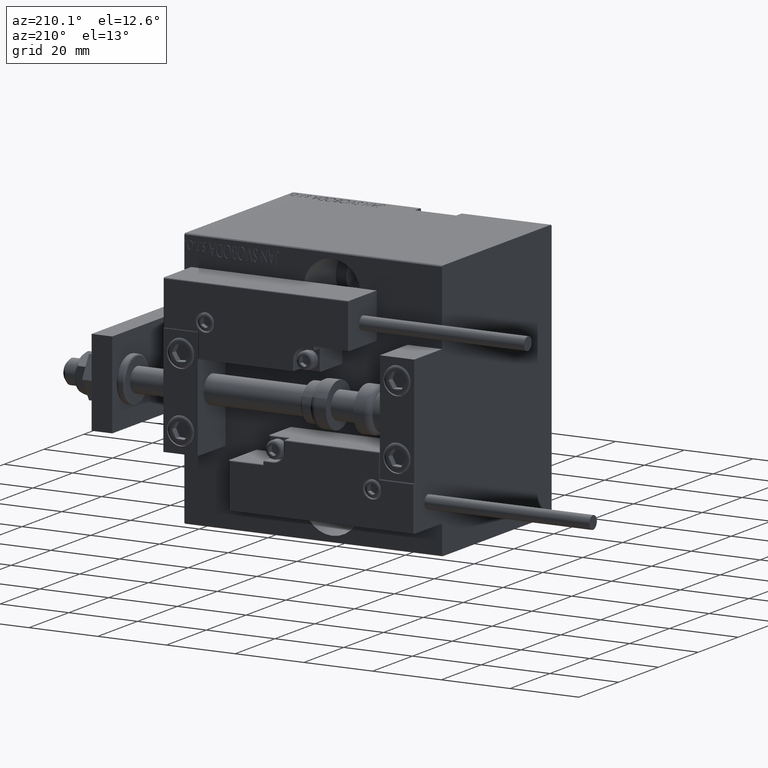
[diagram: clean part render]
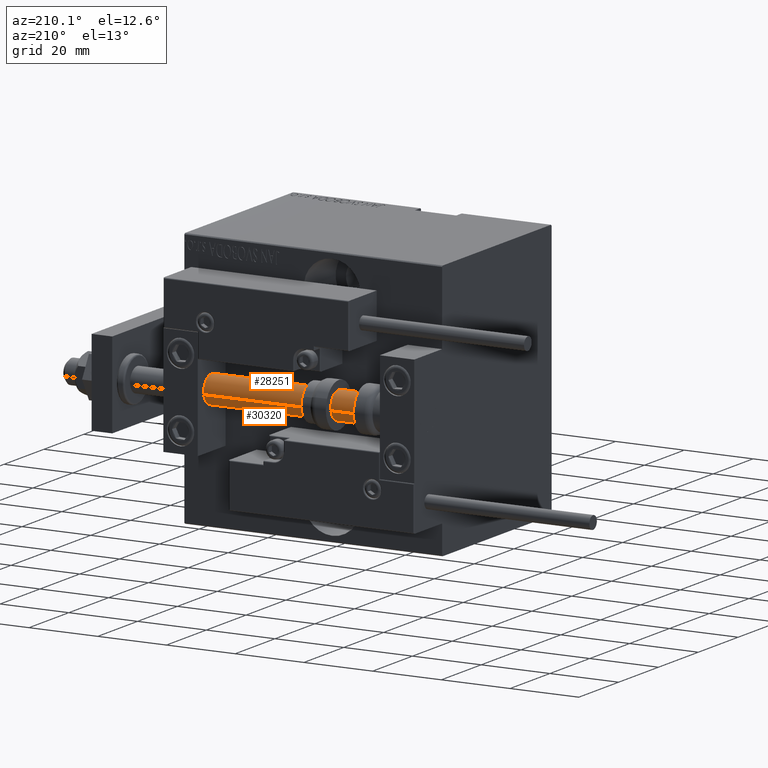
[diagram: same view with one multi-face feature highlighted, each face labeled with its STEP entity id]
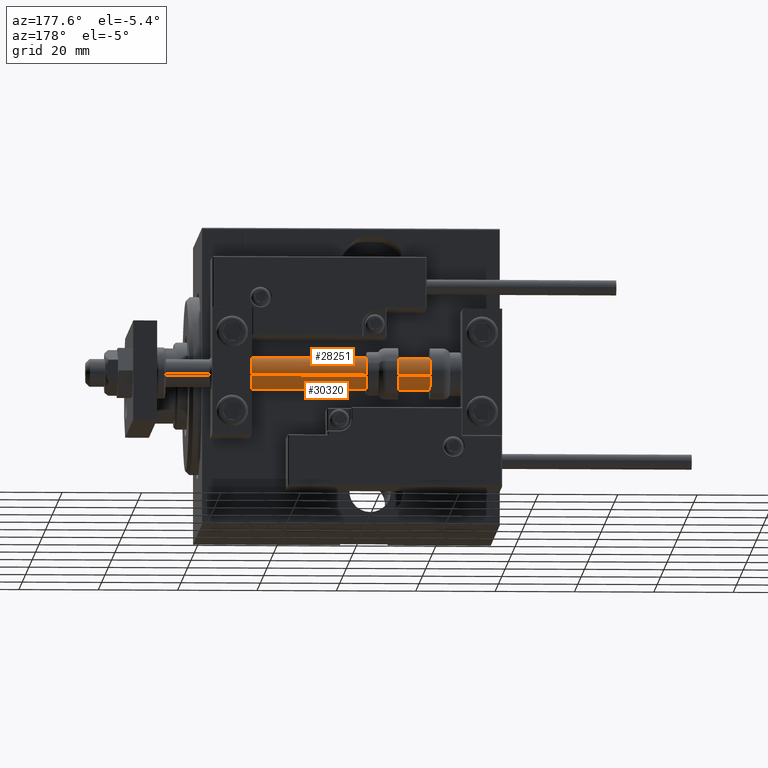
[diagram: same view with one multi-face feature highlighted, each face labeled with its STEP entity id]
A machine part, auxiliary view. The highlighted faces form ONE feature: a constant-radius fillet chain: 2 tangent blend faces with common blend radius 4 mm. The faces share edges in the B-rep.
A second angle (auxiliary view) of the same feature is appended — it is thin or edge-on in the first view.
Their STEP definitions:
[1] entity #30320 (Cylinder):
#371 = AXIS2_PLACEMENT_3D ( 'NONE', #12954, #44236, #36749 ) ;
#2775 = DIRECTION ( 'NONE',  ( -0.000000000000000000, -0.000000000000000000, -1.000000000000000000 ) ) ;
#3216 = EDGE_CURVE ( 'NONE', #40448, #11078, #20333, .T. ) ;
#4553 = CARTESIAN_POINT ( 'NONE',  ( 0.000000000000000000, 0.000000000000000000, 75.00000000000000000 ) ) ;
#6449 = ORIENTED_EDGE ( 'NONE', *, *, #9708, .T. ) ;
#6760 = CARTESIAN_POINT ( 'NONE',  ( -4.000000000000000000, 0.000000000000000000, 75.00000000000000000 ) ) ;
#8298 = DIRECTION ( 'NONE',  ( -0.000000000000000000, -0.000000000000000000, -1.000000000000000000 ) ) ;
#9708 = EDGE_CURVE ( 'NONE', #14156, #12245, #15582, .T. ) ;
#9777 = DIRECTION ( 'NONE',  ( -0.000000000000000000, -0.000000000000000000, -1.000000000000000000 ) ) ;
#10745 = CARTESIAN_POINT ( 'NONE',  ( 4.000000000000000000, 4.898587196589412829E-16, 75.00000000000000000 ) ) ;
#11078 = VERTEX_POINT ( 'NONE', #14548 ) ;
#12245 = VERTEX_POINT ( 'NONE', #12436 ) ;
#12319 = DIRECTION ( 'NONE',  ( 1.000000000000000000, 0.000000000000000000, 0.000000000000000000 ) ) ;
#12436 = CARTESIAN_POINT ( 'NONE',  ( -4.000000000000000000, 0.000000000000000000, 2.000000000000029310 ) ) ;
#12954 = CARTESIAN_POINT ( 'NONE',  ( 0.000000000000000000, 0.000000000000000000, 75.00000000000000000 ) ) ;
#14156 = VERTEX_POINT ( 'NONE', #36541 ) ;
#14548 = CARTESIAN_POINT ( 'NONE',  ( -4.000000000000000000, 0.000000000000000000, 75.00000000000000000 ) ) ;
#15569 = CARTESIAN_POINT ( 'NONE',  ( 0.000000000000000000, 0.000000000000000000, 2.000000000000029310 ) ) ;
#15582 = CIRCLE ( 'NONE', #21985, 4.000000000000000000 ) ;
#16540 = CYLINDRICAL_SURFACE ( 'NONE', #41025, 4.000000000000000000 ) ;
#16697 = EDGE_CURVE ( 'NONE', #40448, #14156, #41544, .T. ) ;
#18346 = VECTOR ( 'NONE', #9777, 1000.000000000000000 ) ;
#20333 = CIRCLE ( 'NONE', #371, 4.000000000000000000 ) ;
#21985 = AXIS2_PLACEMENT_3D ( 'NONE', #15569, #34860, #12319 ) ;
#22442 = ORIENTED_EDGE ( 'NONE', *, *, #16697, .T. ) ;
#28081 = DIRECTION ( 'NONE',  ( -1.000000000000000000, 0.000000000000000000, 0.000000000000000000 ) ) ;
#30320 = ADVANCED_FACE ( 'NONE', ( #42598 ), #16540, .T. ) ;
#33716 = ORIENTED_EDGE ( 'NONE', *, *, #3216, .F. ) ;
#34860 = DIRECTION ( 'NONE',  ( -0.000000000000000000, -0.000000000000000000, 1.000000000000000000 ) ) ;
#36212 = ORIENTED_EDGE ( 'NONE', *, *, #37460, .F. ) ;
#36541 = CARTESIAN_POINT ( 'NONE',  ( 4.000000000000000000, 4.898587196589412829E-16, 2.000000000000029310 ) ) ;
#36749 = DIRECTION ( 'NONE',  ( 1.000000000000000000, 0.000000000000000000, 0.000000000000000000 ) ) ;
#37460 = EDGE_CURVE ( 'NONE', #11078, #12245, #40576, .T. ) ;
#40088 = VECTOR ( 'NONE', #2775, 1000.000000000000000 ) ;
#40448 = VERTEX_POINT ( 'NONE', #10745 ) ;
#40576 = LINE ( 'NONE', #6760, #18346 ) ;
#40817 = CARTESIAN_POINT ( 'NONE',  ( 4.000000000000000000, 4.898587196589412829E-16, 75.00000000000000000 ) ) ;
#41025 = AXIS2_PLACEMENT_3D ( 'NONE', #4553, #8298, #28081 ) ;
#41544 = LINE ( 'NONE', #40817, #40088 ) ;
#42598 = FACE_OUTER_BOUND ( 'NONE', #48323, .T. ) ;
#44236 = DIRECTION ( 'NONE',  ( 0.000000000000000000, 0.000000000000000000, 1.000000000000000000 ) ) ;
#48323 = EDGE_LOOP ( 'NONE', ( #33716, #22442, #6449, #36212 ) ) ;
[2] entity #28251 (Cylinder):
#764 = CARTESIAN_POINT ( 'NONE',  ( 0.000000000000000000, 0.000000000000000000, 75.00000000000000000 ) ) ;
#2383 = AXIS2_PLACEMENT_3D ( 'NONE', #6561, #48120, #33356 ) ;
#2775 = DIRECTION ( 'NONE',  ( -0.000000000000000000, -0.000000000000000000, -1.000000000000000000 ) ) ;
#3975 = CIRCLE ( 'NONE', #2383, 4.000000000000000000 ) ;
#6561 = CARTESIAN_POINT ( 'NONE',  ( 0.000000000000000000, 0.000000000000000000, 2.000000000000029310 ) ) ;
#6760 = CARTESIAN_POINT ( 'NONE',  ( -4.000000000000000000, 0.000000000000000000, 75.00000000000000000 ) ) ;
#8757 = DIRECTION ( 'NONE',  ( 1.000000000000000000, 0.000000000000000000, 0.000000000000000000 ) ) ;
#9777 = DIRECTION ( 'NONE',  ( -0.000000000000000000, -0.000000000000000000, -1.000000000000000000 ) ) ;
#10745 = CARTESIAN_POINT ( 'NONE',  ( 4.000000000000000000, 4.898587196589412829E-16, 75.00000000000000000 ) ) ;
#11078 = VERTEX_POINT ( 'NONE', #14548 ) ;
#11798 = ORIENTED_EDGE ( 'NONE', *, *, #37460, .T. ) ;
#12245 = VERTEX_POINT ( 'NONE', #12436 ) ;
#12436 = CARTESIAN_POINT ( 'NONE',  ( -4.000000000000000000, 0.000000000000000000, 2.000000000000029310 ) ) ;
#13097 = DIRECTION ( 'NONE',  ( -1.000000000000000000, 0.000000000000000000, 0.000000000000000000 ) ) ;
#14156 = VERTEX_POINT ( 'NONE', #36541 ) ;
#14548 = CARTESIAN_POINT ( 'NONE',  ( -4.000000000000000000, 0.000000000000000000, 75.00000000000000000 ) ) ;
#15124 = EDGE_LOOP ( 'NONE', ( #34993, #38054, #11798, #33069 ) ) ;
#15527 = DIRECTION ( 'NONE',  ( 0.000000000000000000, 0.000000000000000000, 1.000000000000000000 ) ) ;
#16697 = EDGE_CURVE ( 'NONE', #40448, #14156, #41544, .T. ) ;
#18346 = VECTOR ( 'NONE', #9777, 1000.000000000000000 ) ;
#23620 = EDGE_CURVE ( 'NONE', #11078, #40448, #29329, .T. ) ;
#27463 = AXIS2_PLACEMENT_3D ( 'NONE', #29117, #47402, #13097 ) ;
#28251 = ADVANCED_FACE ( 'NONE', ( #43631 ), #43884, .T. ) ;
#29117 = CARTESIAN_POINT ( 'NONE',  ( 0.000000000000000000, 0.000000000000000000, 75.00000000000000000 ) ) ;
#29329 = CIRCLE ( 'NONE', #44502, 4.000000000000000000 ) ;
#33069 = ORIENTED_EDGE ( 'NONE', *, *, #36616, .T. ) ;
#33356 = DIRECTION ( 'NONE',  ( 1.000000000000000000, 0.000000000000000000, 0.000000000000000000 ) ) ;
#34993 = ORIENTED_EDGE ( 'NONE', *, *, #16697, .F. ) ;
#36541 = CARTESIAN_POINT ( 'NONE',  ( 4.000000000000000000, 4.898587196589412829E-16, 2.000000000000029310 ) ) ;
#36616 = EDGE_CURVE ( 'NONE', #12245, #14156, #3975, .T. ) ;
#37460 = EDGE_CURVE ( 'NONE', #11078, #12245, #40576, .T. ) ;
#38054 = ORIENTED_EDGE ( 'NONE', *, *, #23620, .F. ) ;
#40088 = VECTOR ( 'NONE', #2775, 1000.000000000000000 ) ;
#40448 = VERTEX_POINT ( 'NONE', #10745 ) ;
#40576 = LINE ( 'NONE', #6760, #18346 ) ;
#40817 = CARTESIAN_POINT ( 'NONE',  ( 4.000000000000000000, 4.898587196589412829E-16, 75.00000000000000000 ) ) ;
#41544 = LINE ( 'NONE', #40817, #40088 ) ;
#43631 = FACE_OUTER_BOUND ( 'NONE', #15124, .T. ) ;
#43884 = CYLINDRICAL_SURFACE ( 'NONE', #27463, 4.000000000000000000 ) ;
#44502 = AXIS2_PLACEMENT_3D ( 'NONE', #764, #15527, #8757 ) ;
#47402 = DIRECTION ( 'NONE',  ( -0.000000000000000000, -0.000000000000000000, -1.000000000000000000 ) ) ;
#48120 = DIRECTION ( 'NONE',  ( -0.000000000000000000, -0.000000000000000000, 1.000000000000000000 ) ) ;